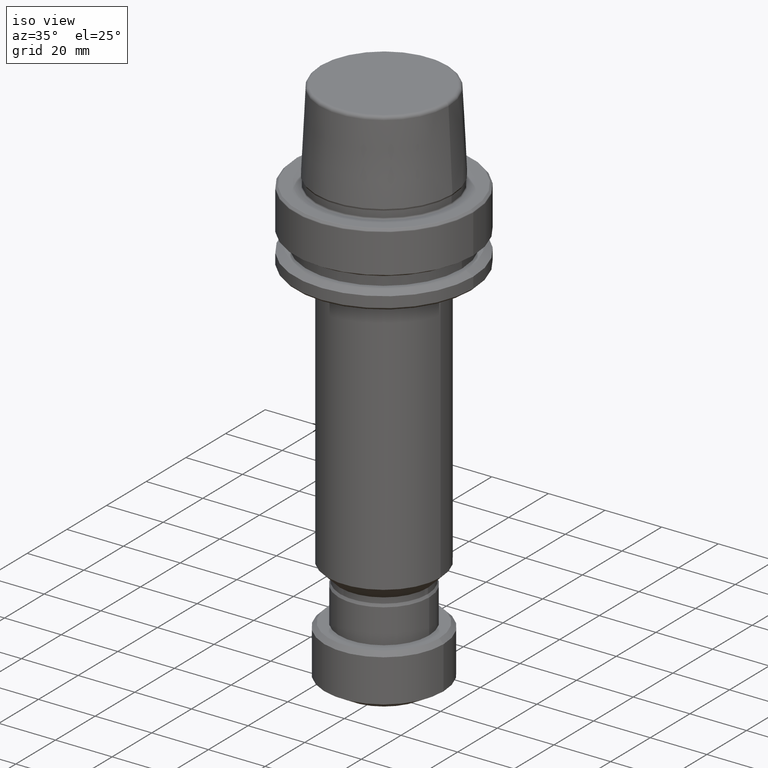
[diagram: clean part render]
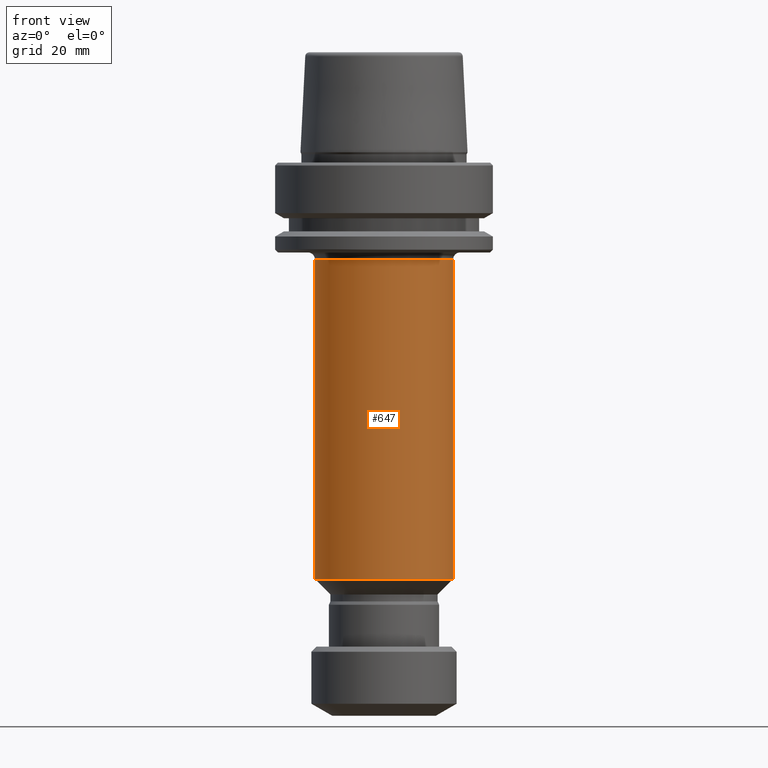
[diagram: tour spotlight — one face highlighted and labeled with its STEP entity id]
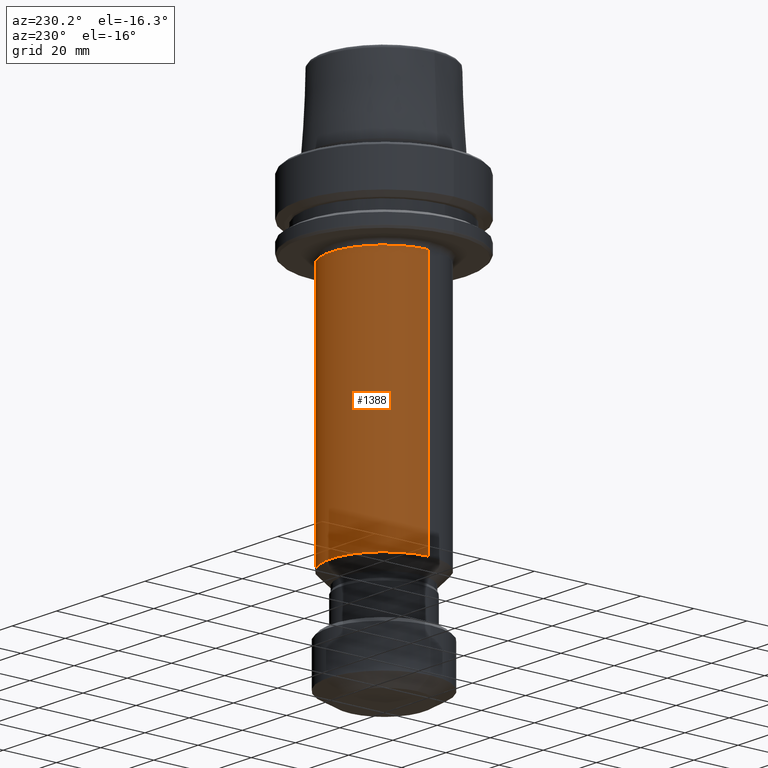
[diagram: tour spotlight — one face highlighted and labeled with its STEP entity id]
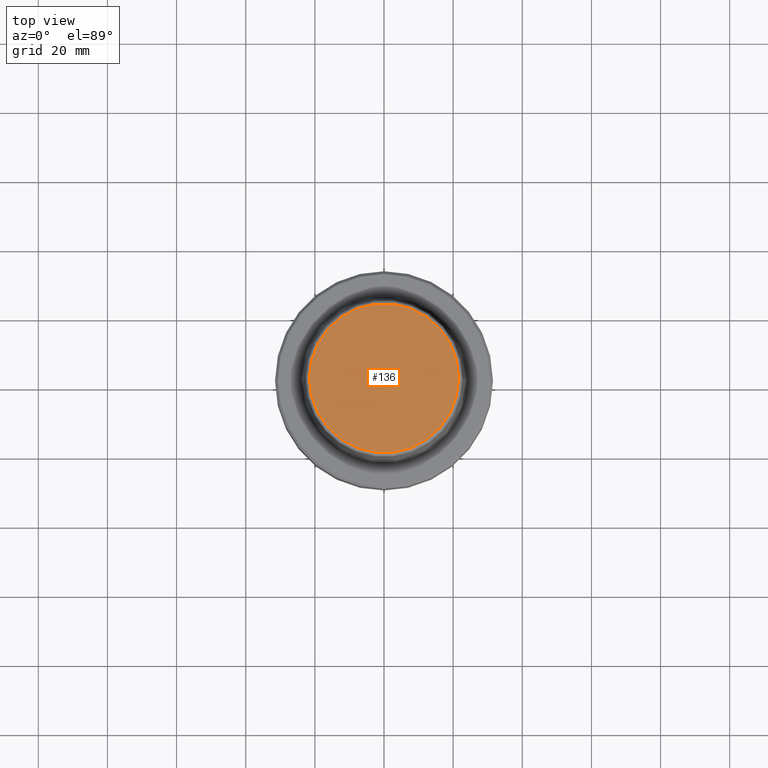
[diagram: tour spotlight — one face highlighted and labeled with its STEP entity id]
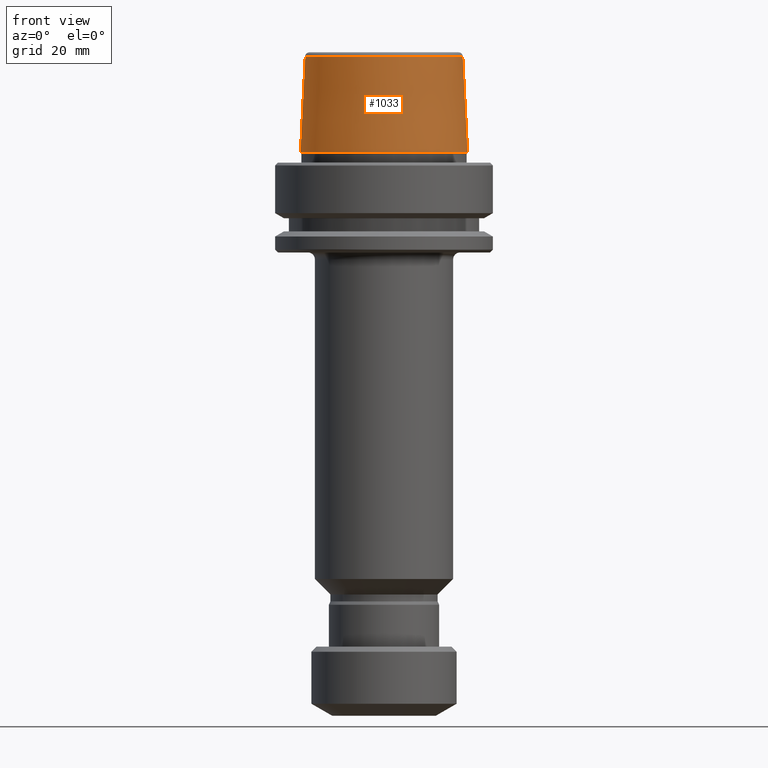
[diagram: tour spotlight — one face highlighted and labeled with its STEP entity id]
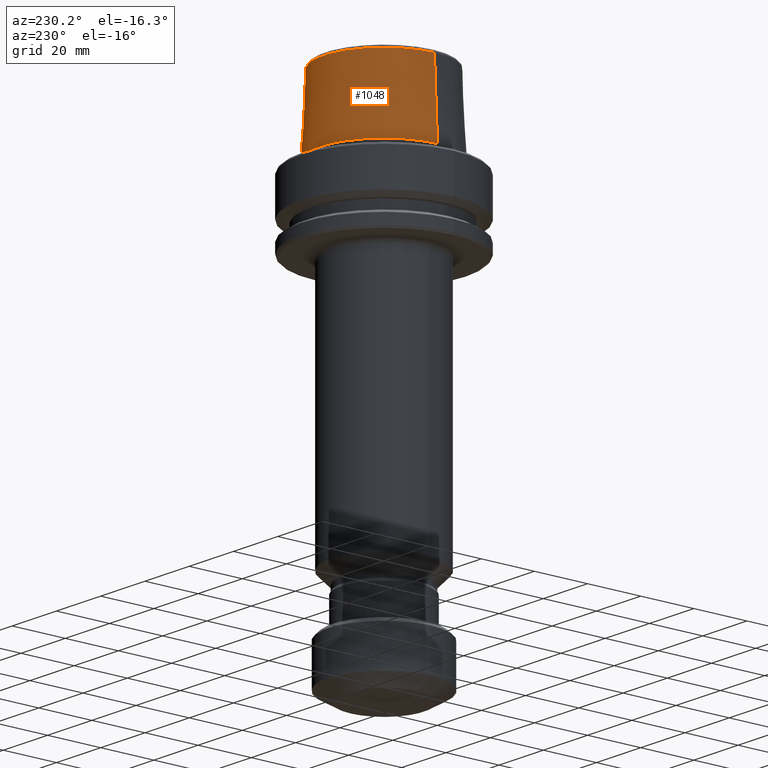
[diagram: tour spotlight — one face highlighted and labeled with its STEP entity id]
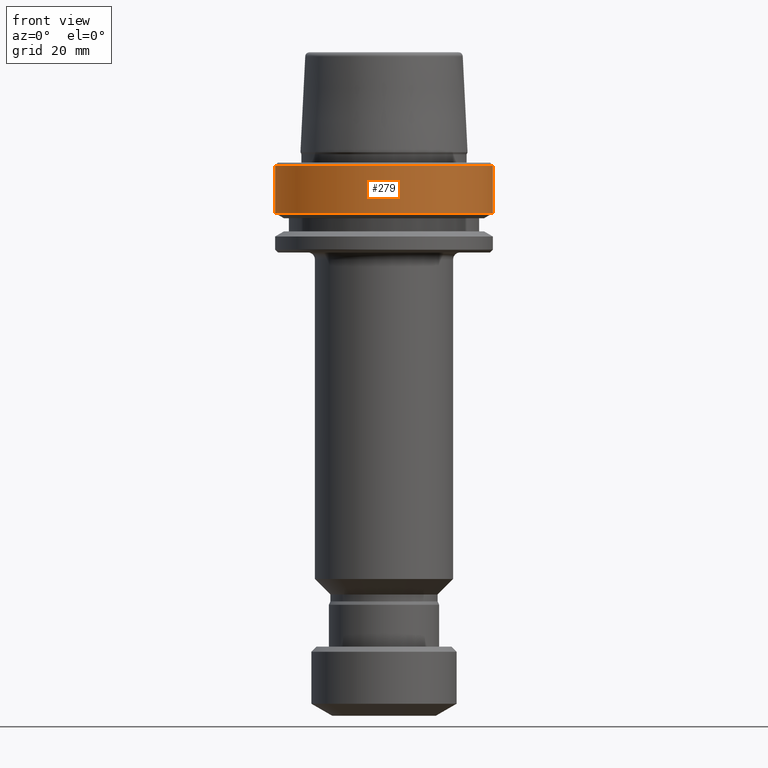
[diagram: tour spotlight — one face highlighted and labeled with its STEP entity id]
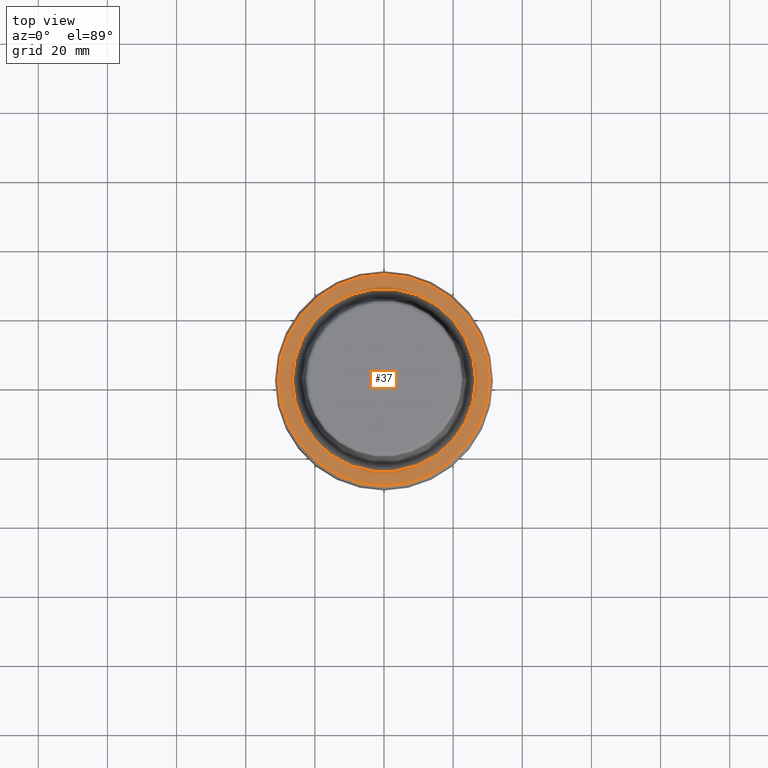
[diagram: tour spotlight — one face highlighted and labeled with its STEP entity id]
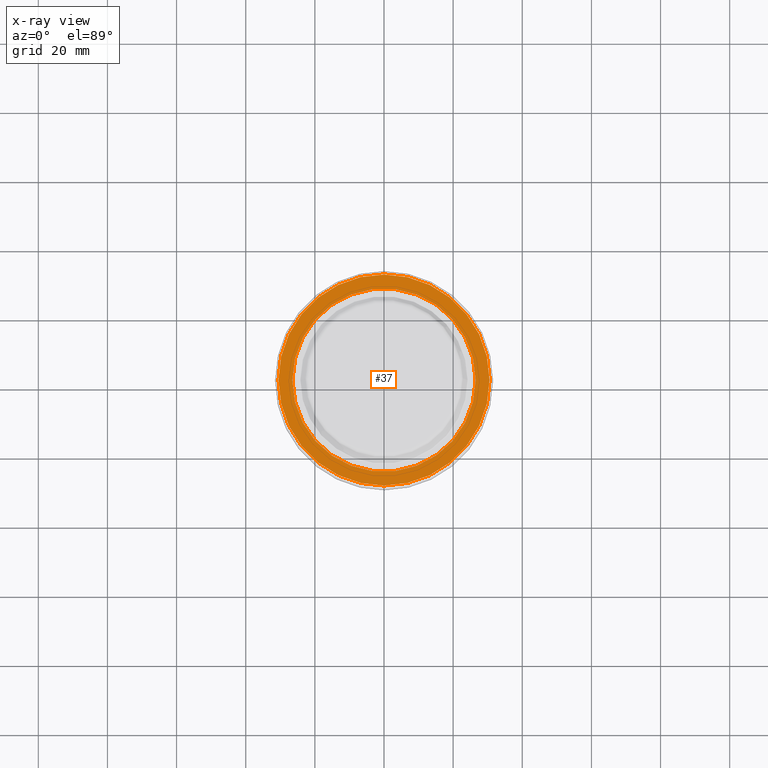
[diagram: x-ray of the same camera — body ghosted, this tour face saturated]
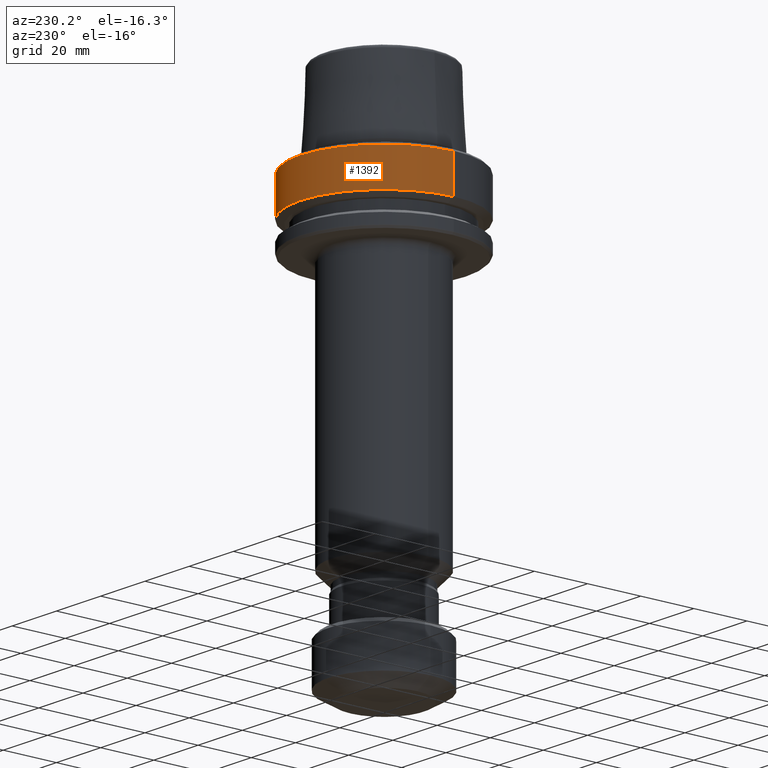
[diagram: tour spotlight — one face highlighted and labeled with its STEP entity id]
A machine part: a face-by-face anatomy tour. The part has 59 B-rep faces; the first image is the clean iso view, then the 8 largest visible faces are spotlighted one at a time (largest first), each with its STEP entity span.

Face 1 — front view, entity #647. In plain terms, the highlighted cylindrical surface (partial cylindrical patch) has radius 20 mm, axis along (-0, -0, 1).
Definition (entity closure, byte-faithful):
#71 = DIRECTION ( 'NONE',  ( 1.000000000000000000, 0.0000000000000000000, 0.0000000000000000000 ) ) ;
#103 = CARTESIAN_POINT ( 'NONE',  ( 20.00000000000000000, 0.0000000000000000000, -27.99999999999999600 ) ) ;
#119 = EDGE_LOOP ( 'NONE', ( #836, #1579, #719, #1326 ) ) ;
#140 = AXIS2_PLACEMENT_3D ( 'NONE', #1149, #1068, #71 ) ;
#217 = DIRECTION ( 'NONE',  ( -1.000000000000000000, 0.0000000000000000000, 0.0000000000000000000 ) ) ;
#309 = VERTEX_POINT ( 'NONE', #318 ) ;
#318 = CARTESIAN_POINT ( 'NONE',  ( -20.00000000000000000, 2.449293598294706500E-015, -120.4400000000000000 ) ) ;
#351 = EDGE_CURVE ( 'NONE', #937, #1493, #831, .T. ) ;
#404 = CIRCLE ( 'NONE', #628, 20.00000000000000000 ) ;
#420 = CYLINDRICAL_SURFACE ( 'NONE', #1188, 20.00000000000000000 ) ;
#464 = FACE_OUTER_BOUND ( 'NONE', #119, .T. ) ;
#479 = CARTESIAN_POINT ( 'NONE',  ( 20.00000000000000000, 0.0000000000000000000, -120.4400000000000000 ) ) ;
#627 = CARTESIAN_POINT ( 'NONE',  ( 20.00000000000000000, 0.0000000000000000000, 67.39773790748995500 ) ) ;
#628 = AXIS2_PLACEMENT_3D ( 'NONE', #648, #925, #217 ) ;
#647 = ADVANCED_FACE ( 'NONE', ( #464 ), #420, .T. ) ;
#648 = CARTESIAN_POINT ( 'NONE',  ( 0.0000000000000000000, 0.0000000000000000000, -27.99999999999999600 ) ) ;
#652 = VECTOR ( 'NONE', #848, 1000.000000000000000 ) ;
#719 = ORIENTED_EDGE ( 'NONE', *, *, #351, .T. ) ;
#728 = LINE ( 'NONE', #1023, #652 ) ;
#743 = EDGE_CURVE ( 'NONE', #309, #937, #1575, .T. ) ;
#752 = DIRECTION ( 'NONE',  ( -0.0000000000000000000, -0.0000000000000000000, 1.000000000000000000 ) ) ;
#831 = LINE ( 'NONE', #627, #1097 ) ;
#836 = ORIENTED_EDGE ( 'NONE', *, *, #1371, .F. ) ;
#848 = DIRECTION ( 'NONE',  ( -0.0000000000000000000, -0.0000000000000000000, 1.000000000000000000 ) ) ;
#925 = DIRECTION ( 'NONE',  ( 0.0000000000000000000, 0.0000000000000000000, -1.000000000000000000 ) ) ;
#937 = VERTEX_POINT ( 'NONE', #479 ) ;
#1023 = CARTESIAN_POINT ( 'NONE',  ( -20.00000000000000000, 2.449293598294706500E-015, 67.39773790748995500 ) ) ;
#1068 = DIRECTION ( 'NONE',  ( -0.0000000000000000000, -0.0000000000000000000, 1.000000000000000000 ) ) ;
#1097 = VECTOR ( 'NONE', #752, 1000.000000000000000 ) ;
#1110 = DIRECTION ( 'NONE',  ( -0.0000000000000000000, -0.0000000000000000000, 1.000000000000000000 ) ) ;
#1149 = CARTESIAN_POINT ( 'NONE',  ( 0.0000000000000000000, 0.0000000000000000000, -120.4400000000000000 ) ) ;
#1188 = AXIS2_PLACEMENT_3D ( 'NONE', #1212, #1110, #1427 ) ;
#1208 = EDGE_CURVE ( 'NONE', #1493, #1350, #404, .T. ) ;
#1212 = CARTESIAN_POINT ( 'NONE',  ( 0.0000000000000000000, 0.0000000000000000000, 67.39773790748995500 ) ) ;
#1299 = CARTESIAN_POINT ( 'NONE',  ( -20.00000000000000000, 2.449293598294706500E-015, -27.99999999999999600 ) ) ;
#1326 = ORIENTED_EDGE ( 'NONE', *, *, #1208, .T. ) ;
#1350 = VERTEX_POINT ( 'NONE', #1299 ) ;
#1371 = EDGE_CURVE ( 'NONE', #309, #1350, #728, .T. ) ;
#1427 = DIRECTION ( 'NONE',  ( 1.000000000000000000, 0.0000000000000000000, 0.0000000000000000000 ) ) ;
#1493 = VERTEX_POINT ( 'NONE', #103 ) ;
#1575 = CIRCLE ( 'NONE', #140, 20.00000000000000000 ) ;
#1579 = ORIENTED_EDGE ( 'NONE', *, *, #743, .T. ) ;

Face 2 — auxiliary view, entity #1388. In plain terms, the highlighted cylindrical surface (partial cylindrical patch) has radius 20 mm, axis along (-0, -0, 1).
Definition (entity closure, byte-faithful):
#95 = EDGE_LOOP ( 'NONE', ( #1544, #1067, #1002, #354 ) ) ;
#103 = CARTESIAN_POINT ( 'NONE',  ( 20.00000000000000000, 0.0000000000000000000, -27.99999999999999600 ) ) ;
#105 = DIRECTION ( 'NONE',  ( 1.000000000000000000, 0.0000000000000000000, 0.0000000000000000000 ) ) ;
#309 = VERTEX_POINT ( 'NONE', #318 ) ;
#318 = CARTESIAN_POINT ( 'NONE',  ( -20.00000000000000000, 2.449293598294706500E-015, -120.4400000000000000 ) ) ;
#351 = EDGE_CURVE ( 'NONE', #937, #1493, #831, .T. ) ;
#354 = ORIENTED_EDGE ( 'NONE', *, *, #351, .F. ) ;
#370 = EDGE_CURVE ( 'NONE', #1350, #1493, #1136, .T. ) ;
#406 = AXIS2_PLACEMENT_3D ( 'NONE', #742, #1340, #958 ) ;
#411 = CYLINDRICAL_SURFACE ( 'NONE', #406, 20.00000000000000000 ) ;
#479 = CARTESIAN_POINT ( 'NONE',  ( 20.00000000000000000, 0.0000000000000000000, -120.4400000000000000 ) ) ;
#539 = DIRECTION ( 'NONE',  ( -0.0000000000000000000, -0.0000000000000000000, 1.000000000000000000 ) ) ;
#552 = CARTESIAN_POINT ( 'NONE',  ( 0.0000000000000000000, 0.0000000000000000000, -27.99999999999999600 ) ) ;
#580 = CARTESIAN_POINT ( 'NONE',  ( 0.0000000000000000000, 0.0000000000000000000, -120.4400000000000000 ) ) ;
#587 = FACE_OUTER_BOUND ( 'NONE', #95, .T. ) ;
#627 = CARTESIAN_POINT ( 'NONE',  ( 20.00000000000000000, 0.0000000000000000000, 67.39773790748995500 ) ) ;
#652 = VECTOR ( 'NONE', #848, 1000.000000000000000 ) ;
#670 = AXIS2_PLACEMENT_3D ( 'NONE', #552, #1100, #1111 ) ;
#728 = LINE ( 'NONE', #1023, #652 ) ;
#742 = CARTESIAN_POINT ( 'NONE',  ( 0.0000000000000000000, 0.0000000000000000000, 67.39773790748995500 ) ) ;
#752 = DIRECTION ( 'NONE',  ( -0.0000000000000000000, -0.0000000000000000000, 1.000000000000000000 ) ) ;
#831 = LINE ( 'NONE', #627, #1097 ) ;
#848 = DIRECTION ( 'NONE',  ( -0.0000000000000000000, -0.0000000000000000000, 1.000000000000000000 ) ) ;
#876 = EDGE_CURVE ( 'NONE', #937, #309, #1541, .T. ) ;
#937 = VERTEX_POINT ( 'NONE', #479 ) ;
#958 = DIRECTION ( 'NONE',  ( 1.000000000000000000, 0.0000000000000000000, 0.0000000000000000000 ) ) ;
#1002 = ORIENTED_EDGE ( 'NONE', *, *, #370, .T. ) ;
#1023 = CARTESIAN_POINT ( 'NONE',  ( -20.00000000000000000, 2.449293598294706500E-015, 67.39773790748995500 ) ) ;
#1067 = ORIENTED_EDGE ( 'NONE', *, *, #1371, .T. ) ;
#1097 = VECTOR ( 'NONE', #752, 1000.000000000000000 ) ;
#1100 = DIRECTION ( 'NONE',  ( 0.0000000000000000000, 0.0000000000000000000, -1.000000000000000000 ) ) ;
#1111 = DIRECTION ( 'NONE',  ( -1.000000000000000000, 0.0000000000000000000, 0.0000000000000000000 ) ) ;
#1136 = CIRCLE ( 'NONE', #670, 20.00000000000000000 ) ;
#1163 = AXIS2_PLACEMENT_3D ( 'NONE', #580, #539, #105 ) ;
#1299 = CARTESIAN_POINT ( 'NONE',  ( -20.00000000000000000, 2.449293598294706500E-015, -27.99999999999999600 ) ) ;
#1340 = DIRECTION ( 'NONE',  ( -0.0000000000000000000, -0.0000000000000000000, 1.000000000000000000 ) ) ;
#1350 = VERTEX_POINT ( 'NONE', #1299 ) ;
#1371 = EDGE_CURVE ( 'NONE', #309, #1350, #728, .T. ) ;
#1388 = ADVANCED_FACE ( 'NONE', ( #587 ), #411, .T. ) ;
#1493 = VERTEX_POINT ( 'NONE', #103 ) ;
#1541 = CIRCLE ( 'NONE', #1163, 20.00000000000000000 ) ;
#1544 = ORIENTED_EDGE ( 'NONE', *, *, #876, .T. ) ;

Face 3 — top view, entity #136. In plain terms, the highlighted planar face has unit normal (0, 0, -1).
Definition (entity closure, byte-faithful):
#24 = FACE_OUTER_BOUND ( 'NONE', #1497, .T. ) ;
#136 = ADVANCED_FACE ( 'NONE', ( #24 ), #842, .F. ) ;
#250 = EDGE_CURVE ( 'NONE', #393, #1312, #904, .T. ) ;
#393 = VERTEX_POINT ( 'NONE', #644 ) ;
#444 = EDGE_CURVE ( 'NONE', #1312, #393, #717, .T. ) ;
#644 = CARTESIAN_POINT ( 'NONE',  ( 21.58108272732117100, 0.0000000000000000000, 31.89999999999999900 ) ) ;
#717 = CIRCLE ( 'NONE', #1144, 21.58108272732117100 ) ;
#784 = AXIS2_PLACEMENT_3D ( 'NONE', #1057, #1495, #1387 ) ;
#842 = PLANE ( 'NONE',  #784 ) ;
#904 = CIRCLE ( 'NONE', #1390, 21.58108272732117100 ) ;
#1057 = CARTESIAN_POINT ( 'NONE',  ( 0.0000000000000000000, 1.264861231626517300E-014, 31.89999999999999900 ) ) ;
#1140 = ORIENTED_EDGE ( 'NONE', *, *, #444, .T. ) ;
#1144 = AXIS2_PLACEMENT_3D ( 'NONE', #1244, #1241, #1570 ) ;
#1230 = DIRECTION ( 'NONE',  ( 1.000000000000000000, 0.0000000000000000000, 0.0000000000000000000 ) ) ;
#1241 = DIRECTION ( 'NONE',  ( -0.0000000000000000000, -0.0000000000000000000, 1.000000000000000000 ) ) ;
#1244 = CARTESIAN_POINT ( 'NONE',  ( 0.0000000000000000000, 0.0000000000000000000, 31.89999999999999900 ) ) ;
#1312 = VERTEX_POINT ( 'NONE', #1321 ) ;
#1313 = CARTESIAN_POINT ( 'NONE',  ( 0.0000000000000000000, 0.0000000000000000000, 31.89999999999999900 ) ) ;
#1321 = CARTESIAN_POINT ( 'NONE',  ( -21.58108272732117100, 2.716307157494421400E-015, 31.89999999999999900 ) ) ;
#1331 = ORIENTED_EDGE ( 'NONE', *, *, #250, .T. ) ;
#1387 = DIRECTION ( 'NONE',  ( -1.000000000000000000, 0.0000000000000000000, -0.0000000000000000000 ) ) ;
#1390 = AXIS2_PLACEMENT_3D ( 'NONE', #1313, #1554, #1230 ) ;
#1495 = DIRECTION ( 'NONE',  ( 0.0000000000000000000, 0.0000000000000000000, -1.000000000000000000 ) ) ;
#1497 = EDGE_LOOP ( 'NONE', ( #1331, #1140 ) ) ;
#1554 = DIRECTION ( 'NONE',  ( -0.0000000000000000000, -0.0000000000000000000, 1.000000000000000000 ) ) ;
#1570 = DIRECTION ( 'NONE',  ( 1.000000000000000000, 0.0000000000000000000, 0.0000000000000000000 ) ) ;

Face 4 — front view, entity #1033. In plain terms, the highlighted conical surface has half-angle 2.868 deg.
Definition (entity closure, byte-faithful):
#145 = DIRECTION ( 'NONE',  ( 1.000000000000000000, 0.0000000000000000000, 0.0000000000000000000 ) ) ;
#147 = DIRECTION ( 'NONE',  ( -0.0000000000000000000, -0.0000000000000000000, 1.000000000000000000 ) ) ;
#151 = CARTESIAN_POINT ( 'NONE',  ( 0.0000000000000000000, 0.0000000000000000000, 30.76004333261572700 ) ) ;
#222 = VECTOR ( 'NONE', #928, 1000.000000000000200 ) ;
#255 = DIRECTION ( 'NONE',  ( -1.000000000000000000, 0.0000000000000000000, 0.0000000000000000000 ) ) ;
#300 = CARTESIAN_POINT ( 'NONE',  ( 24.17032625081241500, 0.0000000000000000000, 3.000000000000002700 ) ) ;
#304 = VERTEX_POINT ( 'NONE', #300 ) ;
#314 = DIRECTION ( 'NONE',  ( 0.0000000000000000000, 0.0000000000000000000, -1.000000000000000000 ) ) ;
#465 = CARTESIAN_POINT ( 'NONE',  ( 22.77957961851796800, 2.874852597157249500E-015, 30.76004333261572700 ) ) ;
#482 = CIRCLE ( 'NONE', #593, 22.77957961851796800 ) ;
#501 = LINE ( 'NONE', #1476, #222 ) ;
#584 = DIRECTION ( 'NONE',  ( -0.0000000000000000000, -0.0000000000000000000, 1.000000000000000000 ) ) ;
#588 = CARTESIAN_POINT ( 'NONE',  ( 0.0000000000000000000, 0.0000000000000000000, 3.000000000000002700 ) ) ;
#593 = AXIS2_PLACEMENT_3D ( 'NONE', #151, #147, #145 ) ;
#617 = VECTOR ( 'NONE', #1143, 1000.000000000000200 ) ;
#663 = AXIS2_PLACEMENT_3D ( 'NONE', #1243, #314, #255 ) ;
#713 = ORIENTED_EDGE ( 'NONE', *, *, #1401, .F. ) ;
#715 = VERTEX_POINT ( 'NONE', #1322 ) ;
#768 = DIRECTION ( 'NONE',  ( 1.000000000000000000, 0.0000000000000000000, 0.0000000000000000000 ) ) ;
#790 = EDGE_CURVE ( 'NONE', #1216, #715, #940, .T. ) ;
#814 = CARTESIAN_POINT ( 'NONE',  ( -22.77957961851796800, 0.0000000000000000000, 30.76004333261572700 ) ) ;
#822 = FACE_OUTER_BOUND ( 'NONE', #959, .T. ) ;
#830 = ORIENTED_EDGE ( 'NONE', *, *, #1054, .T. ) ;
#844 = ORIENTED_EDGE ( 'NONE', *, *, #1439, .F. ) ;
#910 = CONICAL_SURFACE ( 'NONE', #663, 22.77957961851796800, 0.05005701257456003600 ) ;
#928 = DIRECTION ( 'NONE',  ( 0.05003611051310810600, 6.127656258166107400E-018, -0.9987474093306675200 ) ) ;
#940 = LINE ( 'NONE', #814, #617 ) ;
#959 = EDGE_LOOP ( 'NONE', ( #713, #844, #1038, #830 ) ) ;
#965 = CARTESIAN_POINT ( 'NONE',  ( -22.77957961851796800, 0.0000000000000000000, 30.76004333261572700 ) ) ;
#1033 = ADVANCED_FACE ( 'NONE', ( #822 ), #910, .T. ) ;
#1038 = ORIENTED_EDGE ( 'NONE', *, *, #790, .T. ) ;
#1052 = AXIS2_PLACEMENT_3D ( 'NONE', #588, #584, #768 ) ;
#1054 = EDGE_CURVE ( 'NONE', #715, #304, #1125, .T. ) ;
#1099 = VERTEX_POINT ( 'NONE', #465 ) ;
#1125 = CIRCLE ( 'NONE', #1052, 24.17032625081241500 ) ;
#1143 = DIRECTION ( 'NONE',  ( -0.05003611051310810600, 0.0000000000000000000, -0.9987474093306675200 ) ) ;
#1216 = VERTEX_POINT ( 'NONE', #965 ) ;
#1243 = CARTESIAN_POINT ( 'NONE',  ( 0.0000000000000000000, 0.0000000000000000000, 30.76004333261572700 ) ) ;
#1322 = CARTESIAN_POINT ( 'NONE',  ( -24.17032625081241500, 2.960011267740467200E-015, 3.000000000000002700 ) ) ;
#1401 = EDGE_CURVE ( 'NONE', #1099, #304, #501, .T. ) ;
#1439 = EDGE_CURVE ( 'NONE', #1216, #1099, #482, .T. ) ;
#1476 = CARTESIAN_POINT ( 'NONE',  ( 22.77957961851796800, 2.789693926574031400E-015, 30.76004333261572700 ) ) ;

Face 5 — auxiliary view, entity #1048. In plain terms, the highlighted conical surface has half-angle 2.868 deg.
Definition (entity closure, byte-faithful):
#54 = CIRCLE ( 'NONE', #843, 24.17032625081241500 ) ;
#91 = DIRECTION ( 'NONE',  ( 1.000000000000000000, 0.0000000000000000000, 0.0000000000000000000 ) ) ;
#93 = DIRECTION ( 'NONE',  ( -0.0000000000000000000, -0.0000000000000000000, 1.000000000000000000 ) ) ;
#101 = CARTESIAN_POINT ( 'NONE',  ( 0.0000000000000000000, 0.0000000000000000000, 3.000000000000002700 ) ) ;
#174 = DIRECTION ( 'NONE',  ( 0.0000000000000000000, 0.0000000000000000000, -1.000000000000000000 ) ) ;
#180 = EDGE_LOOP ( 'NONE', ( #1268, #1139, #1289, #1419 ) ) ;
#222 = VECTOR ( 'NONE', #928, 1000.000000000000200 ) ;
#300 = CARTESIAN_POINT ( 'NONE',  ( 24.17032625081241500, 0.0000000000000000000, 3.000000000000002700 ) ) ;
#304 = VERTEX_POINT ( 'NONE', #300 ) ;
#315 = DIRECTION ( 'NONE',  ( -1.000000000000000000, 0.0000000000000000000, 0.0000000000000000000 ) ) ;
#465 = CARTESIAN_POINT ( 'NONE',  ( 22.77957961851796800, 2.874852597157249500E-015, 30.76004333261572700 ) ) ;
#501 = LINE ( 'NONE', #1476, #222 ) ;
#617 = VECTOR ( 'NONE', #1143, 1000.000000000000200 ) ;
#626 = EDGE_CURVE ( 'NONE', #1099, #1216, #847, .T. ) ;
#642 = FACE_OUTER_BOUND ( 'NONE', #180, .T. ) ;
#715 = VERTEX_POINT ( 'NONE', #1322 ) ;
#723 = AXIS2_PLACEMENT_3D ( 'NONE', #1550, #764, #1215 ) ;
#764 = DIRECTION ( 'NONE',  ( -0.0000000000000000000, -0.0000000000000000000, 1.000000000000000000 ) ) ;
#780 = CARTESIAN_POINT ( 'NONE',  ( 0.0000000000000000000, 0.0000000000000000000, 30.76004333261572700 ) ) ;
#790 = EDGE_CURVE ( 'NONE', #1216, #715, #940, .T. ) ;
#814 = CARTESIAN_POINT ( 'NONE',  ( -22.77957961851796800, 0.0000000000000000000, 30.76004333261572700 ) ) ;
#826 = AXIS2_PLACEMENT_3D ( 'NONE', #780, #174, #315 ) ;
#843 = AXIS2_PLACEMENT_3D ( 'NONE', #101, #93, #91 ) ;
#847 = CIRCLE ( 'NONE', #723, 22.77957961851796800 ) ;
#928 = DIRECTION ( 'NONE',  ( 0.05003611051310810600, 6.127656258166107400E-018, -0.9987474093306675200 ) ) ;
#940 = LINE ( 'NONE', #814, #617 ) ;
#965 = CARTESIAN_POINT ( 'NONE',  ( -22.77957961851796800, 0.0000000000000000000, 30.76004333261572700 ) ) ;
#1048 = ADVANCED_FACE ( 'NONE', ( #642 ), #1069, .T. ) ;
#1069 = CONICAL_SURFACE ( 'NONE', #826, 22.77957961851796800, 0.05005701257456003600 ) ;
#1099 = VERTEX_POINT ( 'NONE', #465 ) ;
#1139 = ORIENTED_EDGE ( 'NONE', *, *, #1401, .T. ) ;
#1143 = DIRECTION ( 'NONE',  ( -0.05003611051310810600, 0.0000000000000000000, -0.9987474093306675200 ) ) ;
#1215 = DIRECTION ( 'NONE',  ( 1.000000000000000000, 0.0000000000000000000, 0.0000000000000000000 ) ) ;
#1216 = VERTEX_POINT ( 'NONE', #965 ) ;
#1268 = ORIENTED_EDGE ( 'NONE', *, *, #626, .F. ) ;
#1289 = ORIENTED_EDGE ( 'NONE', *, *, #1484, .T. ) ;
#1322 = CARTESIAN_POINT ( 'NONE',  ( -24.17032625081241500, 2.960011267740467200E-015, 3.000000000000002700 ) ) ;
#1401 = EDGE_CURVE ( 'NONE', #1099, #304, #501, .T. ) ;
#1419 = ORIENTED_EDGE ( 'NONE', *, *, #790, .F. ) ;
#1476 = CARTESIAN_POINT ( 'NONE',  ( 22.77957961851796800, 2.789693926574031400E-015, 30.76004333261572700 ) ) ;
#1484 = EDGE_CURVE ( 'NONE', #304, #715, #54, .T. ) ;
#1550 = CARTESIAN_POINT ( 'NONE',  ( 0.0000000000000000000, 0.0000000000000000000, 30.76004333261572700 ) ) ;

Face 6 — front view, entity #279. In plain terms, the highlighted cylindrical surface (partial cylindrical patch) has radius 31.5 mm, axis along (-0, -0, 1).
Definition (entity closure, byte-faithful):
#34 = DIRECTION ( 'NONE',  ( -0.0000000000000000000, -0.0000000000000000000, 1.000000000000000000 ) ) ;
#44 = ORIENTED_EDGE ( 'NONE', *, *, #630, .F. ) ;
#73 = EDGE_CURVE ( 'NONE', #572, #1308, #422, .T. ) ;
#98 = VECTOR ( 'NONE', #1222, 1000.000000000000000 ) ;
#149 = AXIS2_PLACEMENT_3D ( 'NONE', #414, #34, #1223 ) ;
#279 = ADVANCED_FACE ( 'NONE', ( #1510 ), #1437, .T. ) ;
#297 = AXIS2_PLACEMENT_3D ( 'NONE', #452, #1432, #1407 ) ;
#383 = CARTESIAN_POINT ( 'NONE',  ( -31.50000000000000700, 3.857637417314163500E-015, -0.9656854249492363700 ) ) ;
#405 = CARTESIAN_POINT ( 'NONE',  ( 31.50000000000000700, 0.0000000000000000000, -0.9656854249492363700 ) ) ;
#414 = CARTESIAN_POINT ( 'NONE',  ( 0.0000000000000000000, 0.0000000000000000000, -14.62250092524070100 ) ) ;
#422 = CIRCLE ( 'NONE', #149, 31.50000000000000000 ) ;
#447 = DIRECTION ( 'NONE',  ( 1.000000000000000000, 0.0000000000000000000, 0.0000000000000000000 ) ) ;
#452 = CARTESIAN_POINT ( 'NONE',  ( 0.0000000000000000000, 0.0000000000000000000, 78.96908074195309300 ) ) ;
#499 = EDGE_CURVE ( 'NONE', #1308, #1191, #998, .T. ) ;
#572 = VERTEX_POINT ( 'NONE', #936 ) ;
#630 = EDGE_CURVE ( 'NONE', #572, #1119, #1117, .T. ) ;
#708 = EDGE_CURVE ( 'NONE', #1119, #1191, #972, .T. ) ;
#709 = CARTESIAN_POINT ( 'NONE',  ( 31.50000000000000000, 0.0000000000000000000, -14.62250092524070100 ) ) ;
#762 = CARTESIAN_POINT ( 'NONE',  ( -31.50000000000000000, 3.857637417314162700E-015, 78.96908074195309300 ) ) ;
#846 = ORIENTED_EDGE ( 'NONE', *, *, #708, .F. ) ;
#865 = DIRECTION ( 'NONE',  ( -0.0000000000000000000, -0.0000000000000000000, 1.000000000000000000 ) ) ;
#936 = CARTESIAN_POINT ( 'NONE',  ( -31.50000000000000000, 3.857637417314162700E-015, -14.62250092524070100 ) ) ;
#972 = CIRCLE ( 'NONE', #1498, 31.50000000000000700 ) ;
#998 = LINE ( 'NONE', #1090, #1560 ) ;
#999 = CARTESIAN_POINT ( 'NONE',  ( 0.0000000000000000000, 0.0000000000000000000, -0.9656854249492363700 ) ) ;
#1032 = DIRECTION ( 'NONE',  ( -0.0000000000000000000, -0.0000000000000000000, 1.000000000000000000 ) ) ;
#1090 = CARTESIAN_POINT ( 'NONE',  ( 31.50000000000000000, 0.0000000000000000000, 78.96908074195309300 ) ) ;
#1117 = LINE ( 'NONE', #762, #98 ) ;
#1119 = VERTEX_POINT ( 'NONE', #383 ) ;
#1191 = VERTEX_POINT ( 'NONE', #405 ) ;
#1222 = DIRECTION ( 'NONE',  ( -0.0000000000000000000, -0.0000000000000000000, 1.000000000000000000 ) ) ;
#1223 = DIRECTION ( 'NONE',  ( 1.000000000000000000, 0.0000000000000000000, 0.0000000000000000000 ) ) ;
#1308 = VERTEX_POINT ( 'NONE', #709 ) ;
#1407 = DIRECTION ( 'NONE',  ( 1.000000000000000000, 0.0000000000000000000, 0.0000000000000000000 ) ) ;
#1432 = DIRECTION ( 'NONE',  ( -0.0000000000000000000, -0.0000000000000000000, 1.000000000000000000 ) ) ;
#1437 = CYLINDRICAL_SURFACE ( 'NONE', #297, 31.50000000000000000 ) ;
#1498 = AXIS2_PLACEMENT_3D ( 'NONE', #999, #1032, #447 ) ;
#1510 = FACE_OUTER_BOUND ( 'NONE', #1576, .T. ) ;
#1514 = ORIENTED_EDGE ( 'NONE', *, *, #499, .T. ) ;
#1560 = VECTOR ( 'NONE', #865, 1000.000000000000000 ) ;
#1576 = EDGE_LOOP ( 'NONE', ( #44, #1589, #1514, #846 ) ) ;
#1589 = ORIENTED_EDGE ( 'NONE', *, *, #73, .T. ) ;

Face 7 — top view, entity #37. An x-ray twin of the same camera follows (body ghosted, this face saturated) — the face is partly hidden behind the body. In plain terms, the highlighted planar face has unit normal (0, -0, 1).
Definition (entity closure, byte-faithful):
#3 = DIRECTION ( 'NONE',  ( 1.000000000000000000, 0.0000000000000000000, 0.0000000000000000000 ) ) ;
#7 = DIRECTION ( 'NONE',  ( -0.0000000000000000000, -0.0000000000000000000, 1.000000000000000000 ) ) ;
#12 = CARTESIAN_POINT ( 'NONE',  ( 0.0000000000000000000, 0.0000000000000000000, 0.0000000000000000000 ) ) ;
#37 = ADVANCED_FACE ( 'NONE', ( #1120, #1379 ), #337, .T. ) ;
#39 = DIRECTION ( 'NONE',  ( 1.000000000000000000, 0.0000000000000000000, 0.0000000000000000000 ) ) ;
#43 = DIRECTION ( 'NONE',  ( -0.0000000000000000000, -0.0000000000000000000, 1.000000000000000000 ) ) ;
#51 = CARTESIAN_POINT ( 'NONE',  ( 30.53431457505076100, 0.0000000000000000000, 0.0000000000000000000 ) ) ;
#57 = CARTESIAN_POINT ( 'NONE',  ( 26.52499999999999900, 0.0000000000000000000, 0.0000000000000000000 ) ) ;
#66 = AXIS2_PLACEMENT_3D ( 'NONE', #590, #620, #1466 ) ;
#77 = EDGE_LOOP ( 'NONE', ( #676, #308 ) ) ;
#231 = CARTESIAN_POINT ( 'NONE',  ( -26.52499999999999900, 3.248375634738354300E-015, 0.0000000000000000000 ) ) ;
#233 = AXIS2_PLACEMENT_3D ( 'NONE', #990, #1059, #771 ) ;
#286 = CIRCLE ( 'NONE', #233, 30.53431457505076100 ) ;
#308 = ORIENTED_EDGE ( 'NONE', *, *, #766, .T. ) ;
#337 = PLANE ( 'NONE',  #66 ) ;
#338 = DIRECTION ( 'NONE',  ( 1.000000000000000000, 0.0000000000000000000, 0.0000000000000000000 ) ) ;
#343 = CIRCLE ( 'NONE', #1005, 26.52499999999999900 ) ;
#355 = CARTESIAN_POINT ( 'NONE',  ( 0.0000000000000000000, 0.0000000000000000000, 0.0000000000000000000 ) ) ;
#384 = AXIS2_PLACEMENT_3D ( 'NONE', #1588, #43, #39 ) ;
#391 = VERTEX_POINT ( 'NONE', #51 ) ;
#441 = EDGE_LOOP ( 'NONE', ( #974, #740 ) ) ;
#567 = AXIS2_PLACEMENT_3D ( 'NONE', #355, #832, #338 ) ;
#590 = CARTESIAN_POINT ( 'NONE',  ( 0.0000000000000000000, 2.584171915125308100E-029, -1.544988095791840700E-015 ) ) ;
#620 = DIRECTION ( 'NONE',  ( 0.0000000000000000000, -0.0000000000000000000, 1.000000000000000000 ) ) ;
#676 = ORIENTED_EDGE ( 'NONE', *, *, #1027, .T. ) ;
#740 = ORIENTED_EDGE ( 'NONE', *, *, #1513, .F. ) ;
#766 = EDGE_CURVE ( 'NONE', #800, #391, #286, .T. ) ;
#771 = DIRECTION ( 'NONE',  ( 1.000000000000000000, 0.0000000000000000000, 0.0000000000000000000 ) ) ;
#800 = VERTEX_POINT ( 'NONE', #995 ) ;
#832 = DIRECTION ( 'NONE',  ( -0.0000000000000000000, -0.0000000000000000000, 1.000000000000000000 ) ) ;
#927 = CIRCLE ( 'NONE', #567, 30.53431457505076100 ) ;
#974 = ORIENTED_EDGE ( 'NONE', *, *, #1004, .F. ) ;
#990 = CARTESIAN_POINT ( 'NONE',  ( 0.0000000000000000000, 0.0000000000000000000, 0.0000000000000000000 ) ) ;
#995 = CARTESIAN_POINT ( 'NONE',  ( -30.53431457505076100, 3.756694181974138600E-015, 0.0000000000000000000 ) ) ;
#1004 = EDGE_CURVE ( 'NONE', #1512, #1094, #1459, .T. ) ;
#1005 = AXIS2_PLACEMENT_3D ( 'NONE', #12, #7, #3 ) ;
#1027 = EDGE_CURVE ( 'NONE', #391, #800, #927, .T. ) ;
#1059 = DIRECTION ( 'NONE',  ( -0.0000000000000000000, -0.0000000000000000000, 1.000000000000000000 ) ) ;
#1094 = VERTEX_POINT ( 'NONE', #231 ) ;
#1120 = FACE_OUTER_BOUND ( 'NONE', #77, .T. ) ;
#1379 = FACE_BOUND ( 'NONE', #441, .T. ) ;
#1459 = CIRCLE ( 'NONE', #384, 26.52499999999999900 ) ;
#1466 = DIRECTION ( 'NONE',  ( 1.000000000000000000, 0.0000000000000000000, 0.0000000000000000000 ) ) ;
#1512 = VERTEX_POINT ( 'NONE', #57 ) ;
#1513 = EDGE_CURVE ( 'NONE', #1094, #1512, #343, .T. ) ;
#1588 = CARTESIAN_POINT ( 'NONE',  ( 0.0000000000000000000, 0.0000000000000000000, 0.0000000000000000000 ) ) ;

Face 8 — auxiliary view, entity #1392. In plain terms, the highlighted cylindrical surface (partial cylindrical patch) has radius 31.5 mm, axis along (-0, -0, 1).
Definition (entity closure, byte-faithful):
#98 = VECTOR ( 'NONE', #1222, 1000.000000000000000 ) ;
#178 = DIRECTION ( 'NONE',  ( -0.0000000000000000000, -0.0000000000000000000, 1.000000000000000000 ) ) ;
#189 = CIRCLE ( 'NONE', #799, 31.50000000000000000 ) ;
#259 = CARTESIAN_POINT ( 'NONE',  ( 0.0000000000000000000, 0.0000000000000000000, -14.62250092524070100 ) ) ;
#302 = DIRECTION ( 'NONE',  ( -0.0000000000000000000, -0.0000000000000000000, 1.000000000000000000 ) ) ;
#322 = DIRECTION ( 'NONE',  ( 1.000000000000000000, 0.0000000000000000000, 0.0000000000000000000 ) ) ;
#353 = ORIENTED_EDGE ( 'NONE', *, *, #499, .F. ) ;
#371 = CYLINDRICAL_SURFACE ( 'NONE', #500, 31.50000000000000000 ) ;
#383 = CARTESIAN_POINT ( 'NONE',  ( -31.50000000000000700, 3.857637417314163500E-015, -0.9656854249492363700 ) ) ;
#405 = CARTESIAN_POINT ( 'NONE',  ( 31.50000000000000700, 0.0000000000000000000, -0.9656854249492363700 ) ) ;
#462 = EDGE_CURVE ( 'NONE', #1191, #1119, #1290, .T. ) ;
#499 = EDGE_CURVE ( 'NONE', #1308, #1191, #998, .T. ) ;
#500 = AXIS2_PLACEMENT_3D ( 'NONE', #1428, #302, #322 ) ;
#568 = ORIENTED_EDGE ( 'NONE', *, *, #630, .T. ) ;
#572 = VERTEX_POINT ( 'NONE', #936 ) ;
#630 = EDGE_CURVE ( 'NONE', #572, #1119, #1117, .T. ) ;
#678 = EDGE_LOOP ( 'NONE', ( #1096, #568, #1042, #353 ) ) ;
#709 = CARTESIAN_POINT ( 'NONE',  ( 31.50000000000000000, 0.0000000000000000000, -14.62250092524070100 ) ) ;
#762 = CARTESIAN_POINT ( 'NONE',  ( -31.50000000000000000, 3.857637417314162700E-015, 78.96908074195309300 ) ) ;
#785 = FACE_OUTER_BOUND ( 'NONE', #678, .T. ) ;
#799 = AXIS2_PLACEMENT_3D ( 'NONE', #259, #178, #808 ) ;
#808 = DIRECTION ( 'NONE',  ( 1.000000000000000000, 0.0000000000000000000, 0.0000000000000000000 ) ) ;
#859 = DIRECTION ( 'NONE',  ( -0.0000000000000000000, -0.0000000000000000000, 1.000000000000000000 ) ) ;
#861 = CARTESIAN_POINT ( 'NONE',  ( 0.0000000000000000000, 0.0000000000000000000, -0.9656854249492363700 ) ) ;
#865 = DIRECTION ( 'NONE',  ( -0.0000000000000000000, -0.0000000000000000000, 1.000000000000000000 ) ) ;
#936 = CARTESIAN_POINT ( 'NONE',  ( -31.50000000000000000, 3.857637417314162700E-015, -14.62250092524070100 ) ) ;
#964 = DIRECTION ( 'NONE',  ( 1.000000000000000000, 0.0000000000000000000, 0.0000000000000000000 ) ) ;
#998 = LINE ( 'NONE', #1090, #1560 ) ;
#1042 = ORIENTED_EDGE ( 'NONE', *, *, #462, .F. ) ;
#1090 = CARTESIAN_POINT ( 'NONE',  ( 31.50000000000000000, 0.0000000000000000000, 78.96908074195309300 ) ) ;
#1096 = ORIENTED_EDGE ( 'NONE', *, *, #1231, .T. ) ;
#1117 = LINE ( 'NONE', #762, #98 ) ;
#1119 = VERTEX_POINT ( 'NONE', #383 ) ;
#1191 = VERTEX_POINT ( 'NONE', #405 ) ;
#1222 = DIRECTION ( 'NONE',  ( -0.0000000000000000000, -0.0000000000000000000, 1.000000000000000000 ) ) ;
#1231 = EDGE_CURVE ( 'NONE', #1308, #572, #189, .T. ) ;
#1290 = CIRCLE ( 'NONE', #1368, 31.50000000000000700 ) ;
#1308 = VERTEX_POINT ( 'NONE', #709 ) ;
#1368 = AXIS2_PLACEMENT_3D ( 'NONE', #861, #859, #964 ) ;
#1392 = ADVANCED_FACE ( 'NONE', ( #785 ), #371, .T. ) ;
#1428 = CARTESIAN_POINT ( 'NONE',  ( 0.0000000000000000000, 0.0000000000000000000, 78.96908074195309300 ) ) ;
#1560 = VECTOR ( 'NONE', #865, 1000.000000000000000 ) ;